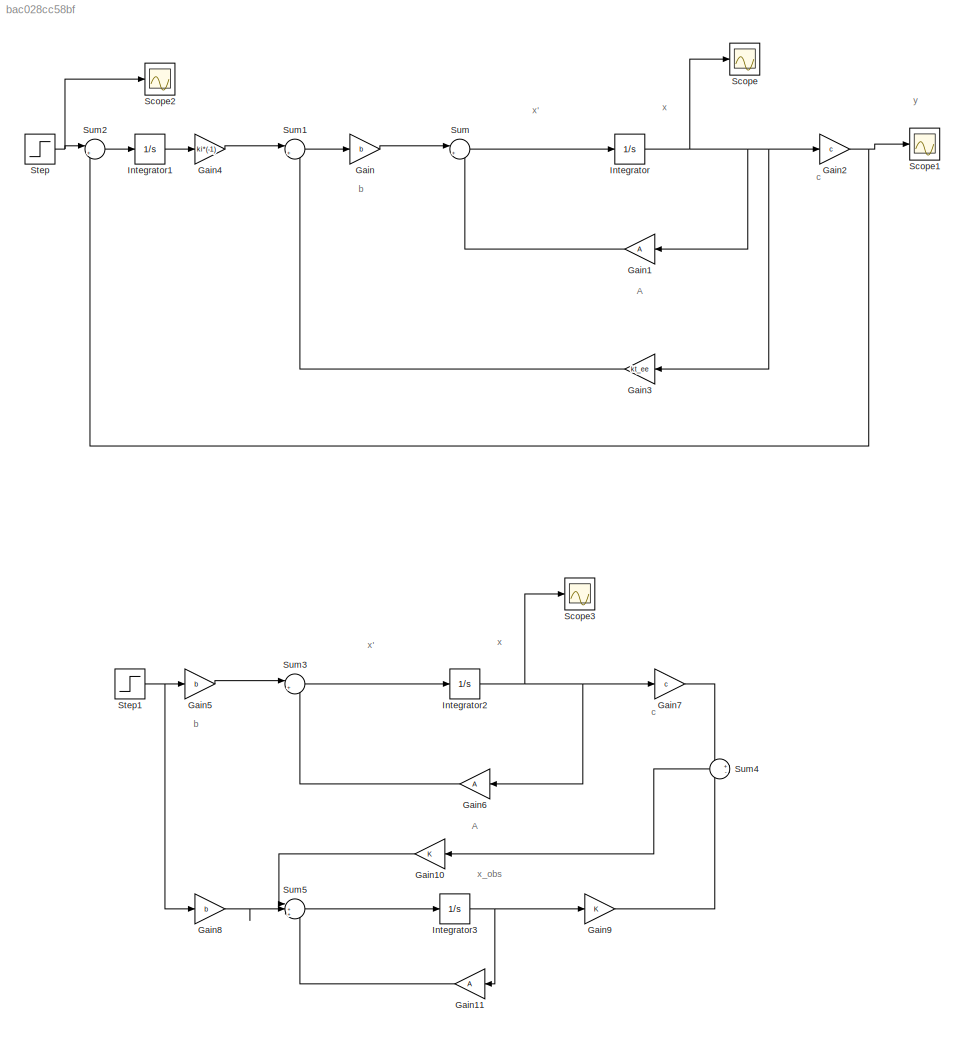
MODEL slx_bac028cc58bf
KIND model
CONFIG AbsTol = auto
CONFIG EnableMultiTasking = off
CONFIG FixedStep = auto
CONFIG MaxStep = auto
CONFIG MinStep = auto
CONFIG RelTol = 1e-3
CONFIG SampleTimeConstraint = Unconstrained
CONFIG SolverName = VariableStepAuto
CONFIG StartTime = 0.0
CONFIG StopTime = 5
BLOCK [Gain] Gain
  Gain = b
  Multiplication = Matrix(K*u) (u vector)
BLOCK [Gain] Gain1
  Gain = A
  Multiplication = Matrix(K*u) (u vector)
  NameLocation = top
BLOCK [Gain] Gain10
  NameLocation = top
BLOCK [Gain] Gain11
  Gain = A
  Multiplication = Matrix(K*u) (u vector)
  NameLocation = top
BLOCK [Gain] Gain2
  Gain = c
  Multiplication = Matrix(K*u) (u vector)
BLOCK [Gain] Gain3
  Gain = kt_ee
  Multiplication = Matrix(K*u) (u vector)
  NameLocation = top
BLOCK [Gain] Gain4
  Gain = ki*(-1)
BLOCK [Gain] Gain5
  Gain = b
  Multiplication = Matrix(K*u) (u vector)
BLOCK [Gain] Gain6
  Gain = A
  Multiplication = Matrix(K*u) (u vector)
  NameLocation = top
BLOCK [Gain] Gain7
  Gain = c
  Multiplication = Matrix(K*u) (u vector)
BLOCK [Gain] Gain8
  Gain = b
  Multiplication = Matrix(K*u) (u vector)
BLOCK [Gain] Gain9
BLOCK [Integrator] Integrator
BLOCK [Integrator] Integrator1
BLOCK [Integrator] Integrator2
BLOCK [Integrator] Integrator3
BLOCK [Scope] Scope
  Floating = off
  NumInputPorts = 1
  ScopeSpecificationString = Simulink.scopes.TimeScopeBlockCfg('CurrentConfiguration', extmgr.ConfigurationSet(extmgr.Configuration('Core','General UI',true),extmgr.Configuration('Core','Source UI',true),extmgr.Configuration('Sources','WiredSimulink',true),extmgr.Configuration('Visuals','Time Domain',true,'SerializedDisplays',{struct('MinYLimReal','-0.00263','MaxYLimReal','0.00062','YLabelReal','','MinYLimMag','0.00000','MaxY...<+1362ch>
BLOCK [Scope] Scope1
  Floating = off
  NumInputPorts = 1
  ScopeSpecificationString = Simulink.scopes.TimeScopeBlockCfg('CurrentConfiguration', extmgr.ConfigurationSet(extmgr.Configuration('Core','General UI',true),extmgr.Configuration('Core','Source UI',true),extmgr.Configuration('Sources','WiredSimulink',true,'DataLoggingVariableName','ScopeData1'),extmgr.Configuration('Visuals','Time Domain',true,'SerializedDisplays',{struct('MinYLimReal','-0.13707','MaxYLimReal','1.23363','YLab...<+1762ch>
BLOCK [Scope] Scope2
  Floating = off
  NumInputPorts = 1
  ScopeSpecificationString = Simulink.scopes.TimeScopeBlockCfg('CurrentConfiguration', extmgr.ConfigurationSet(extmgr.Configuration('Core','General UI',true),extmgr.Configuration('Core','Source UI',true),extmgr.Configuration('Sources','WiredSimulink',true,'DataLoggingVariableName','ScopeData2'),extmgr.Configuration('Visuals','Time Domain',true,'SerializedDisplays',{struct('MinYLimReal','-0.125','MaxYLimReal','1.125','YLabelRe...<+1458ch>
BLOCK [Scope] Scope3
  Floating = off
  NumInputPorts = 1
  ScopeSpecificationString = Simulink.scopes.TimeScopeBlockCfg('CurrentConfiguration', extmgr.ConfigurationSet(extmgr.Configuration('Core','General UI',true),extmgr.Configuration('Core','Source UI',true),extmgr.Configuration('Sources','WiredSimulink',true,'DataLoggingVariableName','ScopeData2'),extmgr.Configuration('Visuals','Time Domain',true,'SerializedDisplays',{struct('MinYLimReal','-0.00263','MaxYLimReal','0.00062','YLab...<+1401ch>
BLOCK [Step] Step
  SampleTime = 0
BLOCK [Step] Step1
  SampleTime = 0
BLOCK [Sum] Sum
  Inputs = |++
BLOCK [Sum] Sum1
  Inputs = |+-
BLOCK [Sum] Sum2
  Inputs = |+-
BLOCK [Sum] Sum3
  Inputs = |++
BLOCK [Sum] Sum4
  Inputs = +-
  NameLocation = top
BLOCK [Sum] Sum5
  Inputs = |+++
ANNOTATION (root): A
ANNOTATION (root): c
ANNOTATION (root): x '
ANNOTATION (root): x
ANNOTATION (root): y
ANNOTATION (root): b
ANNOTATION (root): x_obs
LINE Gain10:1 -> Sum5:1
LINE Gain11:1 -> Sum5:3
LINE Gain1:1 -> Sum:2
NET Gain2:1 -> Scope1:1, Sum2:2
LINE Gain3:1 -> Sum1:2
LINE Gain4:1 -> Sum1:1
LINE Gain5:1 -> Sum3:1
LINE Gain6:1 -> Sum3:2
LINE Gain7:1 -> Sum4:1
LINE Gain8:1 -> Sum5:2
LINE Gain9:1 -> Sum4:2
LINE Gain:1 -> Sum:1
LINE Integrator1:1 -> Gain4:1
NET Integrator2:1 -> Gain6:1, Gain7:1, Scope3:1
NET Integrator3:1 -> Gain11:1, Gain9:1
NET Integrator:1 -> Gain1:1, Gain2:1, Gain3:1, Scope:1
NET Step1:1 -> Gain5:1, Gain8:1
NET Step:1 -> Scope2:1, Sum2:1
LINE Sum1:1 -> Gain:1
LINE Sum2:1 -> Integrator1:1
LINE Sum3:1 -> Integrator2:1
LINE Sum4:1 -> Gain10:1
LINE Sum5:1 -> Integrator3:1
LINE Sum:1 -> Integrator:1
note: NET lines group one-source signal fan-out (src -> all destinations, sorted); 1:1 wires keep LINE
